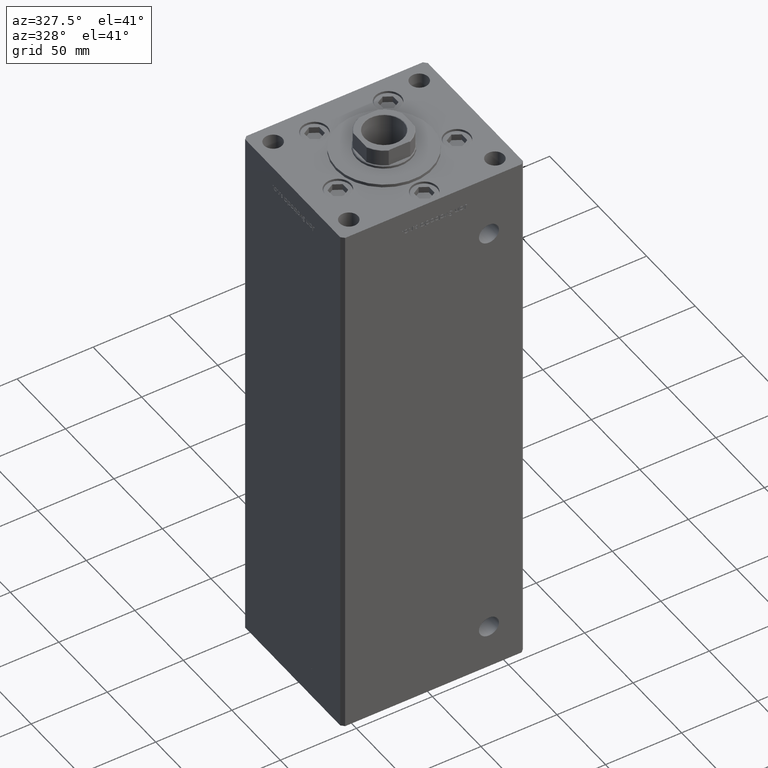
[diagram: clean part render]
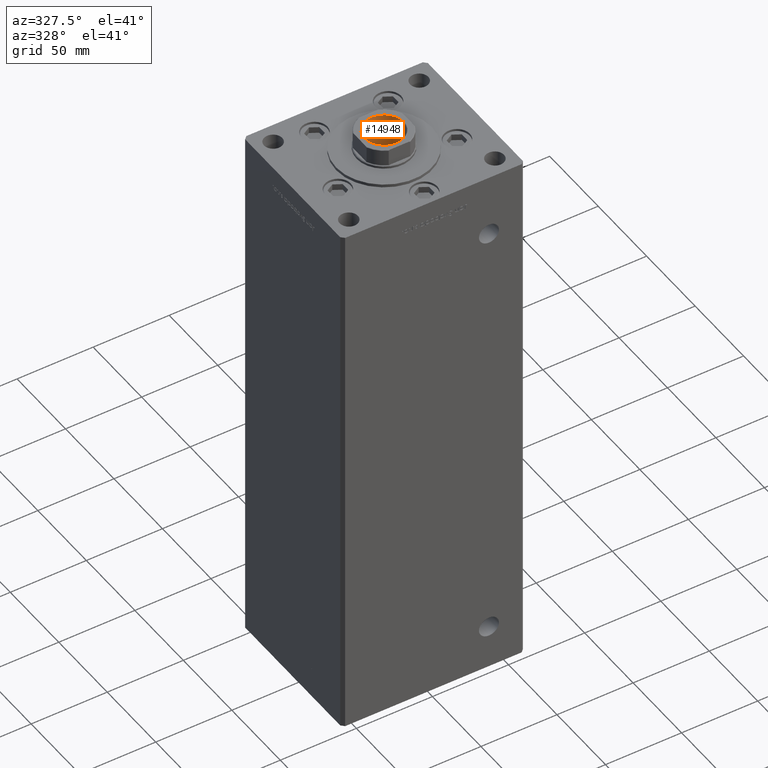
[diagram: same view with one face highlighted and labeled with its STEP entity id]
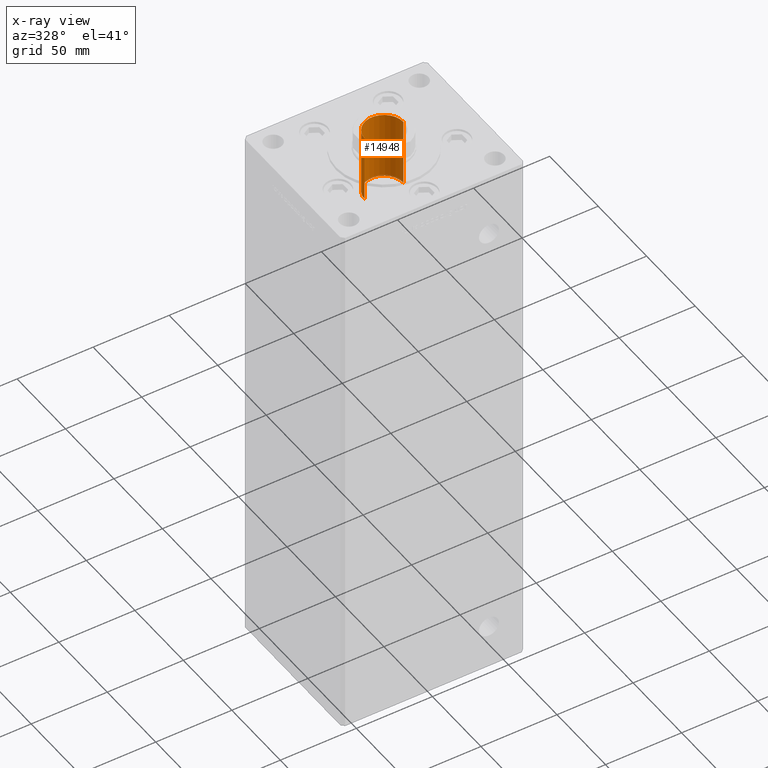
[diagram: x-ray of the same camera — body ghosted, the highlighted face saturated]
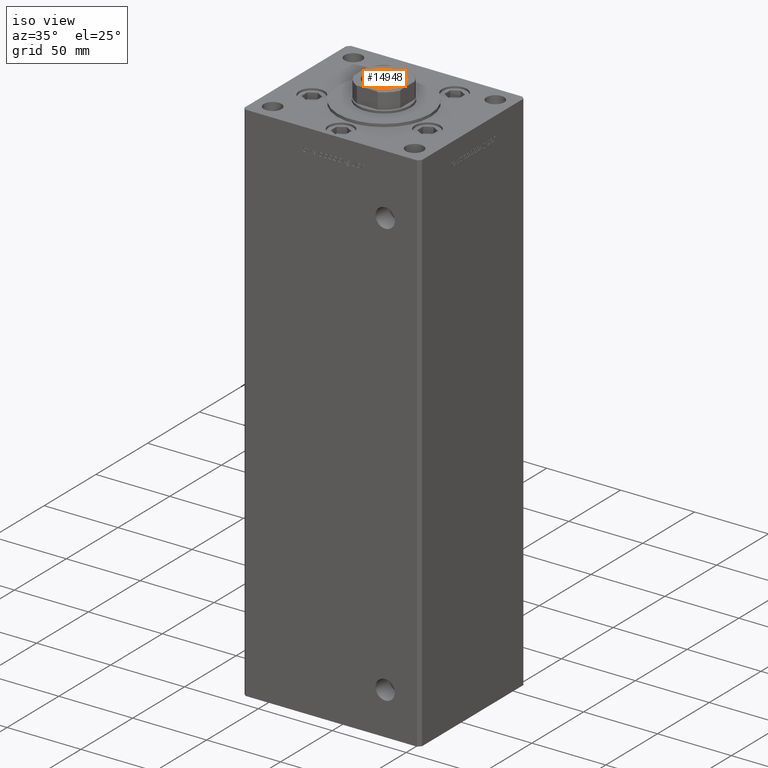
[diagram: same view with one face highlighted and labeled with its STEP entity id]
A machine part, auxiliary view. The second image highlights one B-rep face of the part: STEP entity #14948.
The next image is the same camera in x-ray: the body ghosted, the highlighted face saturated — about 2% of this face is hidden behind the body in this view.
A second angle (iso view) of the same face is appended — the face is thin or edge-on in the first view.
In plain terms, the highlighted cylindrical surface (edge-blend (fillet) strip) has radius 12.75 mm, axis along (0, 0, 1).
Its self-contained STEP definition (entity closure, byte-faithful):
#1082 = CARTESIAN_POINT ( 'NONE',  ( 12.74999999999999467, 0.000000000000000000, 338.9500000000000455 ) ) ;
#3451 = VERTEX_POINT ( 'NONE', #36210 ) ;
#4193 = VERTEX_POINT ( 'NONE', #25401 ) ;
#4670 = EDGE_LOOP ( 'NONE', ( #10382, #20005, #11142, #8889 ) ) ;
#8479 = AXIS2_PLACEMENT_3D ( 'NONE', #38632, #30976, #39147 ) ;
#8677 = EDGE_CURVE ( 'NONE', #24404, #25117, #34768, .T. ) ;
#8889 = ORIENTED_EDGE ( 'NONE', *, *, #21067, .T. ) ;
#9988 = AXIS2_PLACEMENT_3D ( 'NONE', #25257, #45806, #41587 ) ;
#10256 = DIRECTION ( 'NONE',  ( -0.000000000000000000, -0.000000000000000000, 1.000000000000000000 ) ) ;
#10382 = ORIENTED_EDGE ( 'NONE', *, *, #39686, .F. ) ;
#11142 = ORIENTED_EDGE ( 'NONE', *, *, #8677, .T. ) ;
#12624 = CARTESIAN_POINT ( 'NONE',  ( 0.000000000000000000, 0.000000000000000000, 294.2500000000000000 ) ) ;
#14948 = ADVANCED_FACE ( 'NONE', ( #37103 ), #37361, .F. ) ;
#15462 = LINE ( 'NONE', #43397, #16385 ) ;
#16385 = VECTOR ( 'NONE', #23361, 1000.000000000000000 ) ;
#17930 = CARTESIAN_POINT ( 'NONE',  ( 12.74999999999999467, 0.000000000000000000, 339.2500000000000000 ) ) ;
#20005 = ORIENTED_EDGE ( 'NONE', *, *, #25278, .F. ) ;
#20036 = DIRECTION ( 'NONE',  ( 1.000000000000000000, 0.000000000000000000, 0.000000000000000000 ) ) ;
#21067 = EDGE_CURVE ( 'NONE', #25117, #4193, #29519, .T. ) ;
#23361 = DIRECTION ( 'NONE',  ( -0.000000000000000000, -0.000000000000000000, 1.000000000000000000 ) ) ;
#24404 = VERTEX_POINT ( 'NONE', #40484 ) ;
#25117 = VERTEX_POINT ( 'NONE', #1082 ) ;
#25257 = CARTESIAN_POINT ( 'NONE',  ( 0.000000000000000000, 0.000000000000000000, 339.2500000000000000 ) ) ;
#25278 = EDGE_CURVE ( 'NONE', #24404, #3451, #43974, .T. ) ;
#25401 = CARTESIAN_POINT ( 'NONE',  ( -12.74999999999999467, 1.561424668912874519E-15, 338.9500000000000455 ) ) ;
#28792 = AXIS2_PLACEMENT_3D ( 'NONE', #12624, #36345, #20036 ) ;
#29519 = CIRCLE ( 'NONE', #8479, 12.74999999999999467 ) ;
#30976 = DIRECTION ( 'NONE',  ( 0.000000000000000000, 0.000000000000000000, 1.000000000000000000 ) ) ;
#34381 = VECTOR ( 'NONE', #10256, 1000.000000000000000 ) ;
#34768 = LINE ( 'NONE', #17930, #34381 ) ;
#36210 = CARTESIAN_POINT ( 'NONE',  ( -12.74999999999999112, 1.561424668912874125E-15, 294.2500000000000000 ) ) ;
#36345 = DIRECTION ( 'NONE',  ( -0.000000000000000000, -0.000000000000000000, 1.000000000000000000 ) ) ;
#37103 = FACE_OUTER_BOUND ( 'NONE', #4670, .T. ) ;
#37361 = CYLINDRICAL_SURFACE ( 'NONE', #9988, 12.74999999999999467 ) ;
#38632 = CARTESIAN_POINT ( 'NONE',  ( 0.000000000000000000, 0.000000000000000000, 338.9500000000000455 ) ) ;
#39147 = DIRECTION ( 'NONE',  ( 1.000000000000000000, 0.000000000000000000, 0.000000000000000000 ) ) ;
#39686 = EDGE_CURVE ( 'NONE', #3451, #4193, #15462, .T. ) ;
#40484 = CARTESIAN_POINT ( 'NONE',  ( 12.74999999999999112, 0.000000000000000000, 294.2500000000000000 ) ) ;
#41587 = DIRECTION ( 'NONE',  ( 1.000000000000000000, 0.000000000000000000, 0.000000000000000000 ) ) ;
#43397 = CARTESIAN_POINT ( 'NONE',  ( -12.74999999999999467, 1.561424668912874519E-15, 339.2500000000000000 ) ) ;
#43974 = CIRCLE ( 'NONE', #28792, 12.74999999999999112 ) ;
#45806 = DIRECTION ( 'NONE',  ( -0.000000000000000000, -0.000000000000000000, 1.000000000000000000 ) ) ;